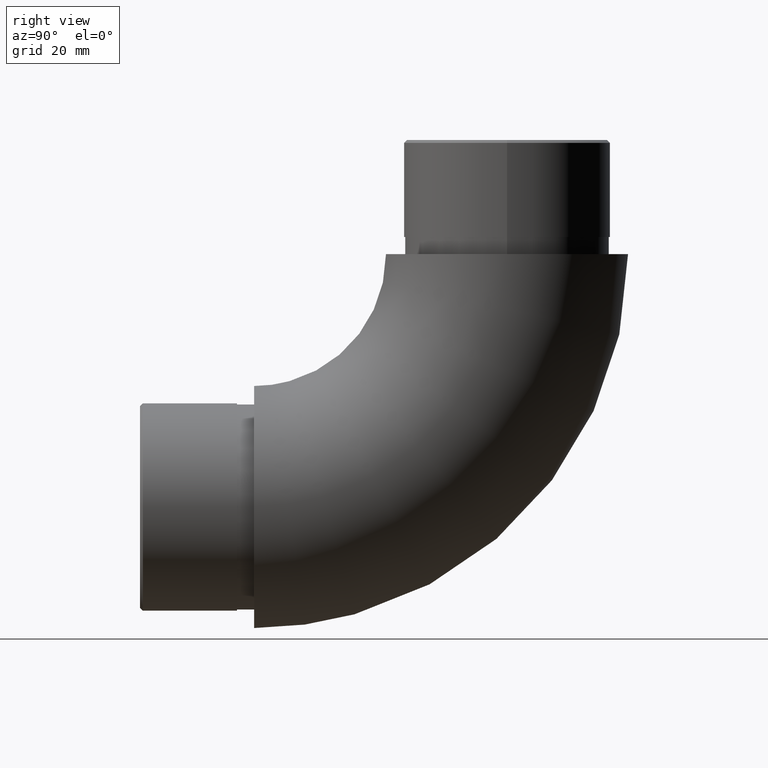
[diagram: clean part render]
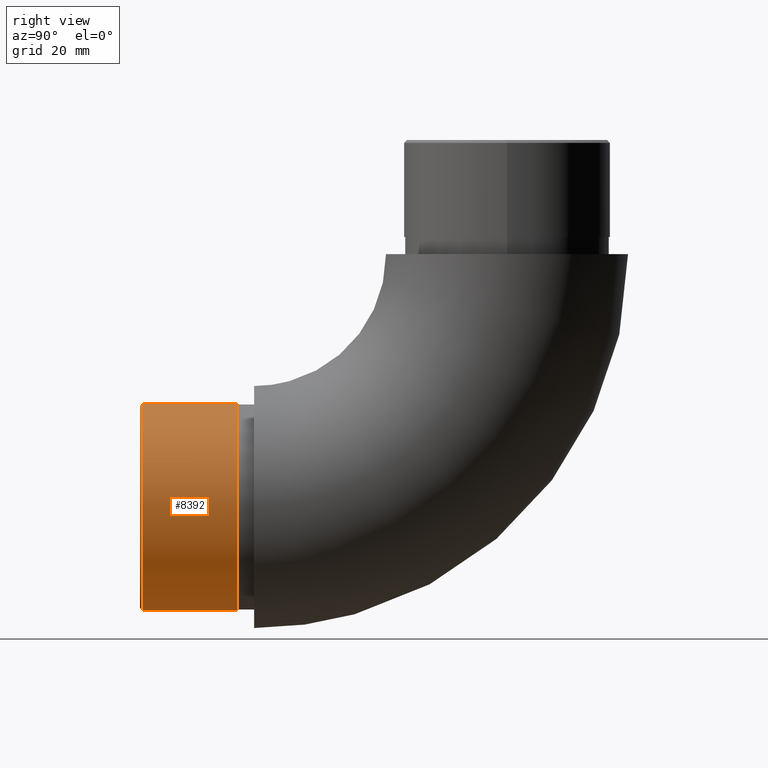
[diagram: same view with one face highlighted and labeled with its STEP entity id]
A machine part, right view. The second image highlights one B-rep face of the part: STEP entity #8392.
In plain terms, the highlighted cylindrical surface (bore or boss wall) has radius 18.15 mm, axis along (-0, 1, -0).
Its self-contained STEP definition (entity closure, byte-faithful):
#330 = VERTEX_POINT ( 'NONE', #10777 ) ;
#399 = EDGE_CURVE ( 'NONE', #330, #330, #9454, .T. ) ;
#1527 = DIRECTION ( 'NONE',  ( 0.0000000000000000000, -1.000000000000000000, 0.0000000000000000000 ) ) ;
#1743 = AXIS2_PLACEMENT_3D ( 'NONE', #3509, #1527, #11768 ) ;
#2436 = AXIS2_PLACEMENT_3D ( 'NONE', #12772, #12728, #8712 ) ;
#2716 = EDGE_CURVE ( 'NONE', #4171, #4171, #10554, .T. ) ;
#3282 = ORIENTED_EDGE ( 'NONE', *, *, #399, .T. ) ;
#3477 = EDGE_LOOP ( 'NONE', ( #3646 ) ) ;
#3509 = CARTESIAN_POINT ( 'NONE',  ( 0.0000000000000000000, -3.000000000000000000, 21.20000000000000300 ) ) ;
#3646 = ORIENTED_EDGE ( 'NONE', *, *, #2716, .T. ) ;
#3946 = DIRECTION ( 'NONE',  ( -0.0000000000000000000, 1.000000000000000000, -0.0000000000000000000 ) ) ;
#4075 = CARTESIAN_POINT ( 'NONE',  ( 0.0000000000000000000, -20.00000000000000000, 21.20000000000000300 ) ) ;
#4171 = VERTEX_POINT ( 'NONE', #7770 ) ;
#4210 = CYLINDRICAL_SURFACE ( 'NONE', #12220, 18.15000000000000600 ) ;
#7591 = FACE_OUTER_BOUND ( 'NONE', #12911, .T. ) ;
#7770 = CARTESIAN_POINT ( 'NONE',  ( 0.0000000000000000000, -3.000000000000000000, 3.050000000000000700 ) ) ;
#8392 = ADVANCED_FACE ( 'NONE', ( #7591, #9167 ), #4210, .T. ) ;
#8712 = DIRECTION ( 'NONE',  ( 0.0000000000000000000, 0.0000000000000000000, -1.000000000000000000 ) ) ;
#9167 = FACE_OUTER_BOUND ( 'NONE', #3477, .T. ) ;
#9454 = CIRCLE ( 'NONE', #2436, 18.15000000000000200 ) ;
#10554 = CIRCLE ( 'NONE', #1743, 18.15000000000000200 ) ;
#10777 = CARTESIAN_POINT ( 'NONE',  ( 0.0000000000000000000, -19.50000000000003200, 3.050000000000000700 ) ) ;
#11768 = DIRECTION ( 'NONE',  ( 0.0000000000000000000, 0.0000000000000000000, -1.000000000000000000 ) ) ;
#12220 = AXIS2_PLACEMENT_3D ( 'NONE', #4075, #3946, #13293 ) ;
#12728 = DIRECTION ( 'NONE',  ( 0.0000000000000000000, 1.000000000000000000, 0.0000000000000000000 ) ) ;
#12772 = CARTESIAN_POINT ( 'NONE',  ( 0.0000000000000000000, -19.50000000000003200, 21.20000000000000300 ) ) ;
#12911 = EDGE_LOOP ( 'NONE', ( #3282 ) ) ;
#13293 = DIRECTION ( 'NONE',  ( 0.0000000000000000000, 0.0000000000000000000, 1.000000000000000000 ) ) ;